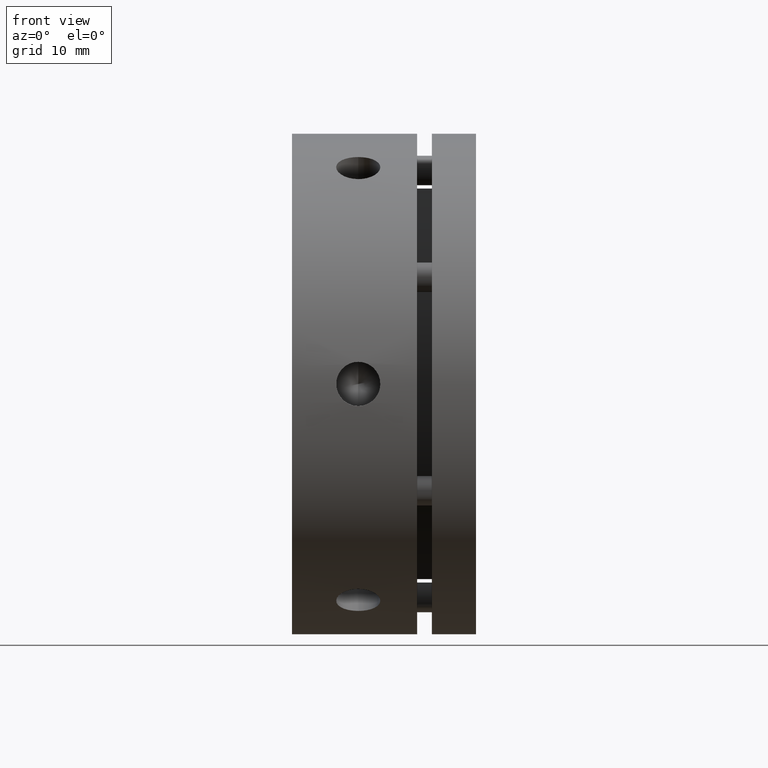
[diagram: clean part render]
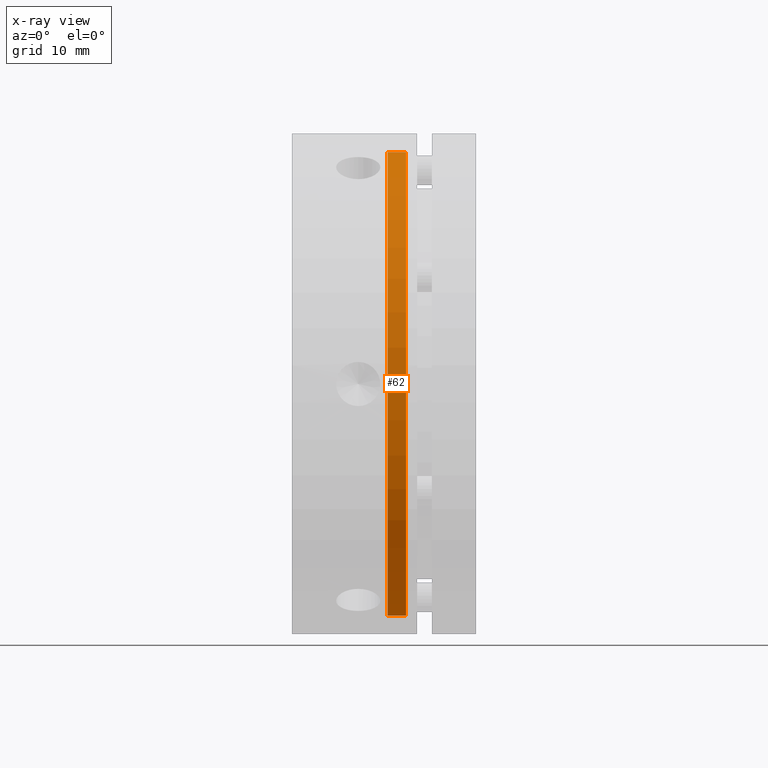
[diagram: x-ray — body ghosted, one internal face saturated and labeled with its STEP entity id]
A machine part, front view, then the same camera in x-ray: the body is ghosted and one INTERNAL B-rep face — a face not visible from any outside direction — is saturated and labeled: STEP entity #62.
In plain terms, the highlighted cylindrical surface (partial cylindrical patch) has radius 31.5 mm, axis along (-1, 0, 0).
Its self-contained STEP definition (entity closure, byte-faithful):
#62 = ADVANCED_FACE ( 'NONE', ( #1793 ), #1802, .F. ) ;
#249 = DIRECTION ( 'NONE',  ( 0.0000000000000000000, 0.0000000000000000000, 1.000000000000000000 ) ) ;
#251 = DIRECTION ( 'NONE',  ( -1.000000000000000000, 0.0000000000000000000, 0.0000000000000000000 ) ) ;
#253 = CARTESIAN_POINT ( 'NONE',  ( 14.25000000000000700, 0.0000000000000000000, 0.0000000000000000000 ) ) ;
#683 = CARTESIAN_POINT ( 'NONE',  ( 15.50000000000000400, 0.0000000000000000000, 31.50000000000000700 ) ) ;
#684 = CARTESIAN_POINT ( 'NONE',  ( 15.50000000000000400, 3.857637417314163500E-015, -31.50000000000000700 ) ) ;
#748 = ORIENTED_EDGE ( 'NONE', *, *, #1549, .T. ) ;
#750 = ORIENTED_EDGE ( 'NONE', *, *, #1547, .T. ) ;
#757 = ORIENTED_EDGE ( 'NONE', *, *, #1546, .F. ) ;
#764 = ORIENTED_EDGE ( 'NONE', *, *, #1550, .T. ) ;
#1134 = EDGE_LOOP ( 'NONE', ( #764, #748, #750, #757 ) ) ;
#1375 = VERTEX_POINT ( 'NONE', #683 ) ;
#1376 = VERTEX_POINT ( 'NONE', #684 ) ;
#1546 = EDGE_CURVE ( 'NONE', #1375, #1637, #2528, .T. ) ;
#1547 = EDGE_CURVE ( 'NONE', #1636, #1637, #2531, .T. ) ;
#1549 = EDGE_CURVE ( 'NONE', #1376, #1636, #2534, .T. ) ;
#1550 = EDGE_CURVE ( 'NONE', #1375, #1376, #2537, .T. ) ;
#1636 = VERTEX_POINT ( 'NONE', #3587 ) ;
#1637 = VERTEX_POINT ( 'NONE', #3623 ) ;
#1793 = FACE_OUTER_BOUND ( 'NONE', #1134, .T. ) ;
#1802 = CYLINDRICAL_SURFACE ( 'NONE', #1951, 31.50000000000000700 ) ;
#1951 = AXIS2_PLACEMENT_3D ( 'NONE', #253, #251, #249 ) ;
#2140 = AXIS2_PLACEMENT_3D ( 'NONE', #3306, #3307, #3308 ) ;
#2141 = AXIS2_PLACEMENT_3D ( 'NONE', #3311, #3312, #3313 ) ;
#2528 = LINE ( 'NONE', #3298, #2533 ) ;
#2531 = CIRCLE ( 'NONE', #2140, 31.50000000000000700 ) ;
#2533 = VECTOR ( 'NONE', #3294, 1000.000000000000000 ) ;
#2534 = LINE ( 'NONE', #3304, #2538 ) ;
#2537 = CIRCLE ( 'NONE', #2141, 31.50000000000000700 ) ;
#2538 = VECTOR ( 'NONE', #3310, 1000.000000000000000 ) ;
#3294 = DIRECTION ( 'NONE',  ( -1.000000000000000000, 0.0000000000000000000, 0.0000000000000000000 ) ) ;
#3298 = CARTESIAN_POINT ( 'NONE',  ( 14.25000000000000700, 0.0000000000000000000, 31.50000000000000700 ) ) ;
#3304 = CARTESIAN_POINT ( 'NONE',  ( 14.25000000000000700, 3.857637417314163500E-015, -31.50000000000000700 ) ) ;
#3306 = CARTESIAN_POINT ( 'NONE',  ( 13.00000000000001100, 0.0000000000000000000, 0.0000000000000000000 ) ) ;
#3307 = DIRECTION ( 'NONE',  ( -1.000000000000000000, 0.0000000000000000000, 0.0000000000000000000 ) ) ;
#3308 = DIRECTION ( 'NONE',  ( 0.0000000000000000000, 0.0000000000000000000, 1.000000000000000000 ) ) ;
#3310 = DIRECTION ( 'NONE',  ( -1.000000000000000000, 0.0000000000000000000, 0.0000000000000000000 ) ) ;
#3311 = CARTESIAN_POINT ( 'NONE',  ( 15.50000000000000400, 0.0000000000000000000, 0.0000000000000000000 ) ) ;
#3312 = DIRECTION ( 'NONE',  ( 1.000000000000000000, -0.0000000000000000000, -0.0000000000000000000 ) ) ;
#3313 = DIRECTION ( 'NONE',  ( 0.0000000000000000000, 0.0000000000000000000, 1.000000000000000000 ) ) ;
#3587 = CARTESIAN_POINT ( 'NONE',  ( 13.00000000000001100, 3.857637417314163500E-015, -31.50000000000000700 ) ) ;
#3623 = CARTESIAN_POINT ( 'NONE',  ( 13.00000000000001100, 0.0000000000000000000, 31.50000000000000700 ) ) ;